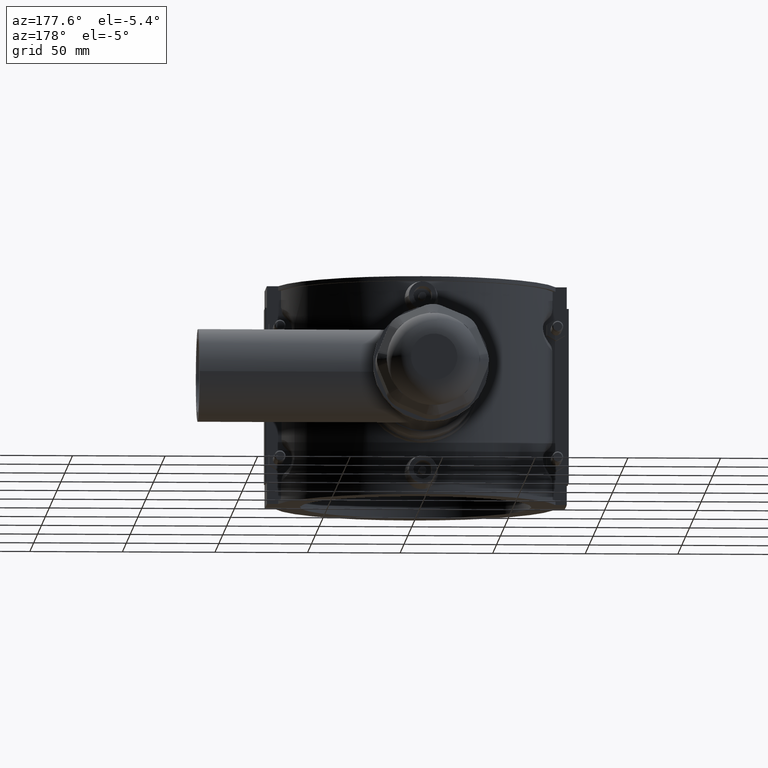
[diagram: clean part render]
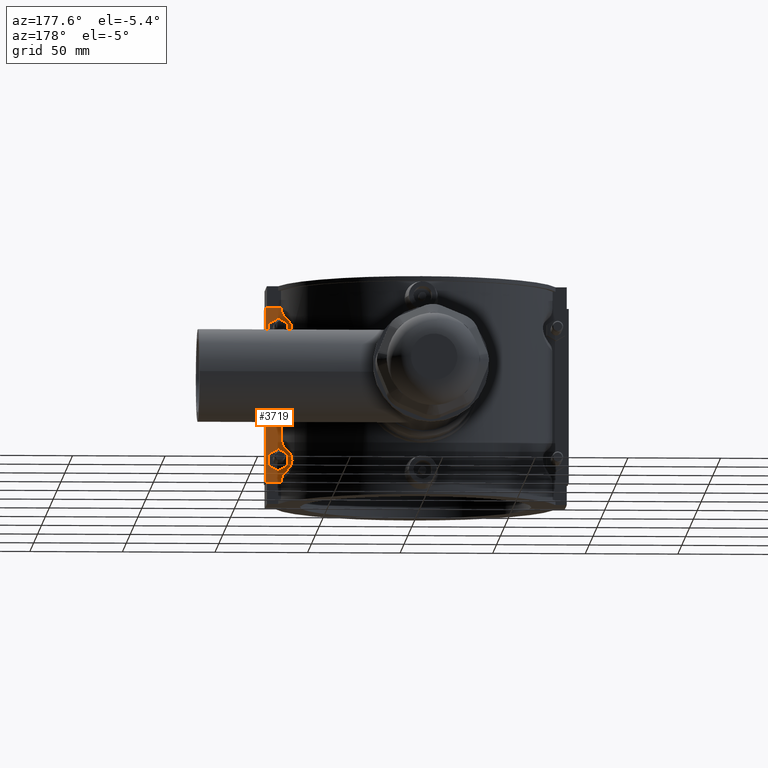
[diagram: same view with one face highlighted and labeled with its STEP entity id]
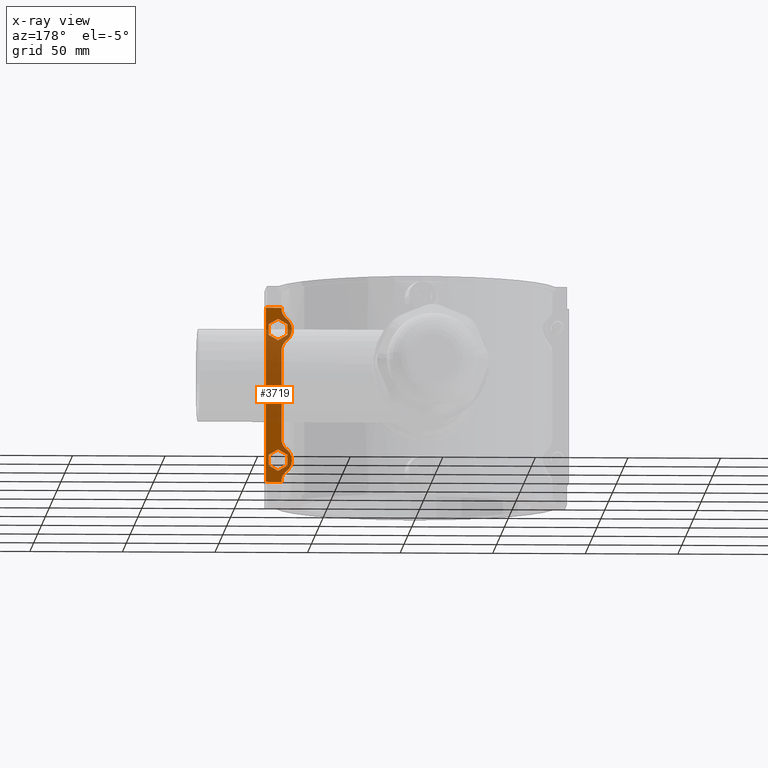
[diagram: x-ray of the same camera — body ghosted, the highlighted face saturated]
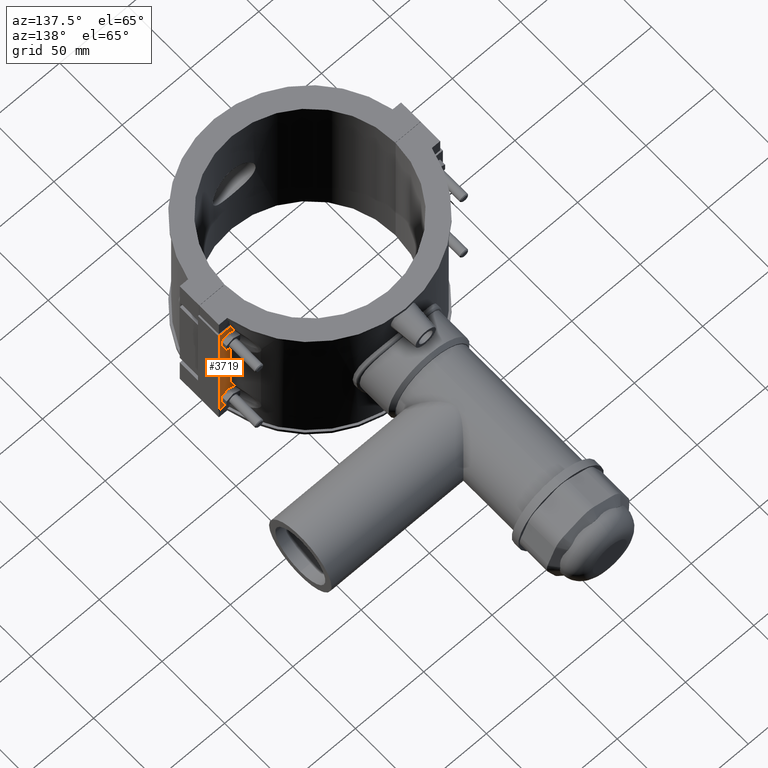
[diagram: same view with one face highlighted and labeled with its STEP entity id]
A machine part, auxiliary view. The second image highlights one B-rep face of the part: STEP entity #3719.
The next image is the same camera in x-ray: the body ghosted, the highlighted face saturated — about 55% of this face is hidden behind the body in this view.
A second angle (auxiliary view) of the same face is appended — the face is thin or edge-on in the first view.
In plain terms, the highlighted planar face has unit normal (0, 1, 0).
Its self-contained STEP definition (entity closure, byte-faithful):
#142=LINE('',#6629,#441);
#143=LINE('',#6646,#442);
#144=LINE('',#6663,#443);
#200=LINE('',#7180,#499);
#201=LINE('',#7182,#500);
#202=LINE('',#7221,#501);
#203=LINE('',#7224,#502);
#204=LINE('',#7226,#503);
#205=LINE('',#7228,#504);
#206=LINE('',#7230,#505);
#207=LINE('',#7232,#506);
#208=LINE('',#7233,#507);
#209=LINE('',#7236,#508);
#210=LINE('',#7238,#509);
#211=LINE('',#7240,#510);
#212=LINE('',#7242,#511);
#213=LINE('',#7244,#512);
#214=LINE('',#7245,#513);
#441=VECTOR('',#4531,0.58859172471041);
#442=VECTOR('',#4532,48.3771834494208);
#443=VECTOR('',#4533,0.588591724710401);
#499=VECTOR('',#4635,94.4);
#500=VECTOR('',#4638,8.36581254297003);
#501=VECTOR('',#4643,8.36581254297003);
#502=VECTOR('',#4644,5.77350269189625);
#503=VECTOR('',#4645,5.77350269189626);
#504=VECTOR('',#4646,5.77350269189625);
#505=VECTOR('',#4647,5.77350269189625);
#506=VECTOR('',#4648,5.77350269189625);
#507=VECTOR('',#4649,5.77350269189626);
#508=VECTOR('',#4650,5.77350269189627);
#509=VECTOR('',#4651,5.77350269189624);
#510=VECTOR('',#4652,5.77350269189626);
#511=VECTOR('',#4653,5.77350269189626);
#512=VECTOR('',#4654,5.77350269189626);
#513=VECTOR('',#4655,5.77350269189626);
#681=FACE_BOUND('',#1234,.T.);
#682=FACE_BOUND('',#1235,.T.);
#784=B_SPLINE_CURVE_WITH_KNOTS('',3,(#7184,#7185,#7186,#7187,#7188,#7189,
#7190,#7191),.UNSPECIFIED.,.F.,.F.,(4,2,2,4),(-0.608600051633255,-0.42727554187033,
-0.243246402726557,0.),.UNSPECIFIED.);
#785=B_SPLINE_CURVE_WITH_KNOTS('',3,(#7194,#7195,#7196,#7197,#7198,#7199,
#7200,#7201),.UNSPECIFIED.,.F.,.F.,(4,2,2,4),(-0.609244250859844,-0.438868636799252,
-0.269172934624271,0.),.UNSPECIFIED.);
#786=B_SPLINE_CURVE_WITH_KNOTS('',3,(#7203,#7204,#7205,#7206,#7207,#7208,
#7209,#7210),.UNSPECIFIED.,.F.,.F.,(4,2,2,4),(-0.608600051633299,-0.427275541870061,
-0.243246402726071,0.),.UNSPECIFIED.);
#787=B_SPLINE_CURVE_WITH_KNOTS('',3,(#7213,#7214,#7215,#7216,#7217,#7218,
#7219,#7220),.UNSPECIFIED.,.F.,.F.,(4,2,2,4),(-0.609244250859876,-0.438868636799044,
-0.26917293462429,0.),.UNSPECIFIED.);
#983=FACE_OUTER_BOUND('',#1233,.T.);
#1233=EDGE_LOOP('',(#2900,#2901,#2902,#2903,#2904,#2905,#2906,#2907,#2908,
#2909,#2910,#2911));
#1234=EDGE_LOOP('',(#2912,#2913,#2914,#2915,#2916,#2917));
#1235=EDGE_LOOP('',(#2918,#2919,#2920,#2921,#2922,#2923));
#1454=CIRCLE('',#3995,7.5);
#1455=CIRCLE('',#3996,7.5);
#1657=VERTEX_POINT('',#6626);
#1658=VERTEX_POINT('',#6628);
#1659=VERTEX_POINT('',#6630);
#1660=VERTEX_POINT('',#6645);
#1661=VERTEX_POINT('',#6647);
#1662=VERTEX_POINT('',#6662);
#1717=VERTEX_POINT('',#7173);
#1720=VERTEX_POINT('',#7178);
#1721=VERTEX_POINT('',#7183);
#1722=VERTEX_POINT('',#7192);
#1723=VERTEX_POINT('',#7202);
#1724=VERTEX_POINT('',#7211);
#1725=VERTEX_POINT('',#7222);
#1726=VERTEX_POINT('',#7223);
#1727=VERTEX_POINT('',#7225);
#1728=VERTEX_POINT('',#7227);
#1729=VERTEX_POINT('',#7229);
#1730=VERTEX_POINT('',#7231);
#1731=VERTEX_POINT('',#7234);
#1732=VERTEX_POINT('',#7235);
#1733=VERTEX_POINT('',#7237);
#1734=VERTEX_POINT('',#7239);
#1735=VERTEX_POINT('',#7241);
#1736=VERTEX_POINT('',#7243);
#2076=EDGE_CURVE('',#1657,#1658,#142,.T.);
#2078=EDGE_CURVE('',#1659,#1660,#143,.T.);
#2080=EDGE_CURVE('',#1661,#1662,#144,.T.);
#2158=EDGE_CURVE('',#1720,#1717,#200,.T.);
#2159=EDGE_CURVE('',#1662,#1720,#201,.T.);
#2160=EDGE_CURVE('',#1721,#1661,#784,.T.);
#2161=EDGE_CURVE('',#1722,#1721,#1454,.T.);
#2162=EDGE_CURVE('',#1660,#1722,#785,.T.);
#2163=EDGE_CURVE('',#1723,#1659,#786,.T.);
#2164=EDGE_CURVE('',#1724,#1723,#1455,.T.);
#2165=EDGE_CURVE('',#1658,#1724,#787,.T.);
#2166=EDGE_CURVE('',#1717,#1657,#202,.T.);
#2167=EDGE_CURVE('',#1725,#1726,#203,.T.);
#2168=EDGE_CURVE('',#1727,#1725,#204,.T.);
#2169=EDGE_CURVE('',#1728,#1727,#205,.T.);
#2170=EDGE_CURVE('',#1729,#1728,#206,.T.);
#2171=EDGE_CURVE('',#1730,#1729,#207,.T.);
#2172=EDGE_CURVE('',#1726,#1730,#208,.T.);
#2173=EDGE_CURVE('',#1731,#1732,#209,.T.);
#2174=EDGE_CURVE('',#1733,#1731,#210,.T.);
#2175=EDGE_CURVE('',#1734,#1733,#211,.T.);
#2176=EDGE_CURVE('',#1735,#1734,#212,.T.);
#2177=EDGE_CURVE('',#1736,#1735,#213,.T.);
#2178=EDGE_CURVE('',#1732,#1736,#214,.T.);
#2900=ORIENTED_EDGE('',*,*,#2158,.F.);
#2901=ORIENTED_EDGE('',*,*,#2159,.F.);
#2902=ORIENTED_EDGE('',*,*,#2080,.F.);
#2903=ORIENTED_EDGE('',*,*,#2160,.F.);
#2904=ORIENTED_EDGE('',*,*,#2161,.F.);
#2905=ORIENTED_EDGE('',*,*,#2162,.F.);
#2906=ORIENTED_EDGE('',*,*,#2078,.F.);
#2907=ORIENTED_EDGE('',*,*,#2163,.F.);
#2908=ORIENTED_EDGE('',*,*,#2164,.F.);
#2909=ORIENTED_EDGE('',*,*,#2165,.F.);
#2910=ORIENTED_EDGE('',*,*,#2076,.F.);
#2911=ORIENTED_EDGE('',*,*,#2166,.F.);
#2912=ORIENTED_EDGE('',*,*,#2167,.F.);
#2913=ORIENTED_EDGE('',*,*,#2168,.F.);
#2914=ORIENTED_EDGE('',*,*,#2169,.F.);
#2915=ORIENTED_EDGE('',*,*,#2170,.F.);
#2916=ORIENTED_EDGE('',*,*,#2171,.F.);
#2917=ORIENTED_EDGE('',*,*,#2172,.F.);
#2918=ORIENTED_EDGE('',*,*,#2173,.F.);
#2919=ORIENTED_EDGE('',*,*,#2174,.F.);
#2920=ORIENTED_EDGE('',*,*,#2175,.F.);
#2921=ORIENTED_EDGE('',*,*,#2176,.F.);
#2922=ORIENTED_EDGE('',*,*,#2177,.F.);
#2923=ORIENTED_EDGE('',*,*,#2178,.F.);
#3538=PLANE('',#3994);
#3719=ADVANCED_FACE('',(#983,#681,#682),#3538,.T.);
#3994=AXIS2_PLACEMENT_3D('',#7181,#4636,#4637);
#3995=AXIS2_PLACEMENT_3D('',#7193,#4639,#4640);
#3996=AXIS2_PLACEMENT_3D('',#7212,#4641,#4642);
#4531=DIRECTION('',(0.,0.,-1.));
#4532=DIRECTION('',(0.,0.,-1.));
#4533=DIRECTION('',(0.,0.,-1.));
#4635=DIRECTION('',(0.,0.,1.));
#4636=DIRECTION('center_axis',(0.,1.,0.));
#4637=DIRECTION('ref_axis',(-1.,0.,0.));
#4638=DIRECTION('',(1.,0.,0.));
#4639=DIRECTION('center_axis',(0.,-1.,0.));
#4640=DIRECTION('ref_axis',(-1.,0.,0.));
#4641=DIRECTION('center_axis',(0.,-1.,0.));
#4642=DIRECTION('ref_axis',(-1.,0.,0.));
#4643=DIRECTION('',(-1.,0.,0.));
#4644=DIRECTION('',(-0.866025403784439,0.,-0.5));
#4645=DIRECTION('',(0.,0.,-1.));
#4646=DIRECTION('',(0.866025403784439,0.,-0.499999999999999));
#4647=DIRECTION('',(0.866025403784439,0.,0.5));
#4648=DIRECTION('',(0.,0.,1.));
#4649=DIRECTION('',(-0.866025403784438,0.,0.5));
#4650=DIRECTION('',(-0.866025403784439,0.,0.499999999999999));
#4651=DIRECTION('',(-0.866025403784438,0.,-0.500000000000002));
#4652=DIRECTION('',(0.,0.,-1.));
#4653=DIRECTION('',(0.866025403784438,0.,-0.5));
#4654=DIRECTION('',(0.866025403784438,0.,0.5));
#4655=DIRECTION('',(0.,0.,1.));
#6626=CARTESIAN_POINT('',(73.13418745703,16.6250000000001,47.2));
#6628=CARTESIAN_POINT('',(73.13418745703,16.625,46.6114082752896));
#6629=CARTESIAN_POINT('',(73.13418745703,16.6250000000001,0.));
#6630=CARTESIAN_POINT('',(73.13418745703,16.625,24.1885917247104));
#6645=CARTESIAN_POINT('',(73.13418745703,16.625,-24.1885917247104));
#6646=CARTESIAN_POINT('',(73.13418745703,16.6250000000001,0.));
#6647=CARTESIAN_POINT('',(73.13418745703,16.625,-46.6114082752896));
#6662=CARTESIAN_POINT('',(73.13418745703,16.6250000000001,-47.2));
#6663=CARTESIAN_POINT('',(73.13418745703,16.6250000000001,0.));
#7173=CARTESIAN_POINT('',(81.5,16.6250000000001,47.2));
#7178=CARTESIAN_POINT('',(81.5,16.6250000000001,-47.2));
#7180=CARTESIAN_POINT('',(81.5,16.6250000000001,0.));
#7181=CARTESIAN_POINT('Origin',(82.,16.6250000000001,0.));
#7182=CARTESIAN_POINT('',(82.,16.6250000000001,-47.2));
#7183=CARTESIAN_POINT('',(70.477968308609,16.6250000000001,-41.3834128540537));
#7184=CARTESIAN_POINT('Ctrl Pts',(70.477968308609,16.6250000000001,-41.3834128540537));
#7185=CARTESIAN_POINT('Ctrl Pts',(70.9606537887566,16.6250000000001,-41.7482078450467));
#7186=CARTESIAN_POINT('Ctrl Pts',(71.3936750093955,16.6250000000117,-42.1753881946307));
#7187=CARTESIAN_POINT('Ctrl Pts',(72.139047568449,16.6250000000117,-43.139895731918));
#7188=CARTESIAN_POINT('Ctrl Pts',(72.4465232624359,16.6250000000199,-43.6749342118244));
#7189=CARTESIAN_POINT('Ctrl Pts',(72.9761079758534,16.6250000000199,-44.9980965841789));
#7190=CARTESIAN_POINT('Ctrl Pts',(73.13418745703,16.6250000000001,-45.8005869328677));
#7191=CARTESIAN_POINT('Ctrl Pts',(73.13418745703,16.6250000000001,-46.6114082752896));
#7192=CARTESIAN_POINT('',(70.4779683086089,16.6250000000001,-29.4165871459463));
#7193=CARTESIAN_POINT('Origin',(75.,16.6250000000001,-35.4));
#7194=CARTESIAN_POINT('Ctrl Pts',(73.1341874570299,16.6250000000001,-24.1885917247104));
#7195=CARTESIAN_POINT('Ctrl Pts',(73.1341874570299,16.6250000000001,-24.7560062595778));
#7196=CARTESIAN_POINT('Ctrl Pts',(73.0567290303484,16.6249999999948,-25.3205439720582));
#7197=CARTESIAN_POINT('Ctrl Pts',(72.7560670159624,16.6249999999948,-26.4127463112054));
#7198=CARTESIAN_POINT('Ctrl Pts',(72.5348214604038,16.6250000000002,-26.9356331320741));
#7199=CARTESIAN_POINT('Ctrl Pts',(71.7983995533765,16.6250000000002,-28.1989117293406));
#7200=CARTESIAN_POINT('Ctrl Pts',(71.1937784406064,16.6250000000001,-28.8756055722416));
#7201=CARTESIAN_POINT('Ctrl Pts',(70.4779683086089,16.6250000000001,-29.4165871459463));
#7202=CARTESIAN_POINT('',(70.4779683086089,16.6250000000001,29.4165871459463));
#7203=CARTESIAN_POINT('Ctrl Pts',(70.4779683086089,16.6250000000001,29.4165871459463));
#7204=CARTESIAN_POINT('Ctrl Pts',(70.9606537887573,16.6250000000001,29.0517921549527));
#7205=CARTESIAN_POINT('Ctrl Pts',(71.3936750093969,16.6250000000117,28.6246118053679));
#7206=CARTESIAN_POINT('Ctrl Pts',(72.1390475684509,16.6250000000117,27.660104268079));
#7207=CARTESIAN_POINT('Ctrl Pts',(72.4465232624379,16.6250000000199,27.1250657881718));
#7208=CARTESIAN_POINT('Ctrl Pts',(72.976107975854,16.6250000000199,25.8019034158179));
#7209=CARTESIAN_POINT('Ctrl Pts',(73.13418745703,16.6250000000001,24.9994130671306));
#7210=CARTESIAN_POINT('Ctrl Pts',(73.13418745703,16.6250000000001,24.1885917247104));
#7211=CARTESIAN_POINT('',(70.477968308609,16.6250000000001,41.3834128540537));
#7212=CARTESIAN_POINT('Origin',(75.,16.6250000000001,35.4));
#7213=CARTESIAN_POINT('Ctrl Pts',(73.13418745703,16.6250000000001,46.6114082752896));
#7214=CARTESIAN_POINT('Ctrl Pts',(73.13418745703,16.6250000000001,46.0439937404214));
#7215=CARTESIAN_POINT('Ctrl Pts',(73.0567290303482,16.6249999999948,45.4794560279404));
#7216=CARTESIAN_POINT('Ctrl Pts',(72.7560670159619,16.6249999999948,44.3872536887934));
#7217=CARTESIAN_POINT('Ctrl Pts',(72.5348214604035,16.6250000000002,43.8643668679253));
#7218=CARTESIAN_POINT('Ctrl Pts',(71.7983995533765,16.6250000000002,42.6010882706595));
#7219=CARTESIAN_POINT('Ctrl Pts',(71.1937784406064,16.6250000000001,41.9243944277585));
#7220=CARTESIAN_POINT('Ctrl Pts',(70.477968308609,16.6250000000001,41.3834128540537));
#7221=CARTESIAN_POINT('',(82.,16.6250000000001,47.2));
#7222=CARTESIAN_POINT('',(80.,16.6250000000001,32.5132486540519));
#7223=CARTESIAN_POINT('',(75.,16.6250000000001,29.6264973081037));
#7224=CARTESIAN_POINT('',(73.7106751765077,16.6250000000001,28.8821052741876));
#7225=CARTESIAN_POINT('',(80.,16.6250000000001,38.2867513459481));
#7226=CARTESIAN_POINT('',(80.,16.6250000000001,19.1433756729741));
#7227=CARTESIAN_POINT('',(75.,16.6250000000001,41.1735026918963));
#7228=CARTESIAN_POINT('',(86.5393248234923,16.6250000000001,34.5112703987865));
#7229=CARTESIAN_POINT('',(70.,16.6250000000001,38.2867513459481));
#7230=CARTESIAN_POINT('',(66.2106751765077,16.6250000000001,36.0989836390579));
#7231=CARTESIAN_POINT('',(70.,16.6250000000001,32.5132486540519));
#7232=CARTESIAN_POINT('',(70.,16.6250000000001,16.2566243270259));
#7233=CARTESIAN_POINT('',(84.0393248234923,16.6250000000001,24.407640687968));
#7234=CARTESIAN_POINT('',(75.0000000000001,16.6250000000001,-41.1735026918963));
#7235=CARTESIAN_POINT('',(70.,16.6250000000001,-38.2867513459481));
#7236=CARTESIAN_POINT('',(68.7106751765078,16.6250000000001,-37.542359312032));
#7237=CARTESIAN_POINT('',(80.,16.6250000000001,-38.2867513459481));
#7238=CARTESIAN_POINT('',(89.0393248234923,16.6250000000001,-33.0678947258124));
#7239=CARTESIAN_POINT('',(80.,16.6250000000001,-32.5132486540519));
#7240=CARTESIAN_POINT('',(80.,16.6250000000001,-16.2566243270259));
#7241=CARTESIAN_POINT('',(75.,16.6250000000001,-29.6264973081037));
#7242=CARTESIAN_POINT('',(71.2106751765077,16.6250000000001,-27.4387296012135));
#7243=CARTESIAN_POINT('',(70.,16.6250000000001,-32.5132486540519));
#7244=CARTESIAN_POINT('',(81.5393248234923,16.6250000000001,-25.8510163609421));
#7245=CARTESIAN_POINT('',(70.,16.6250000000001,-19.1433756729741));